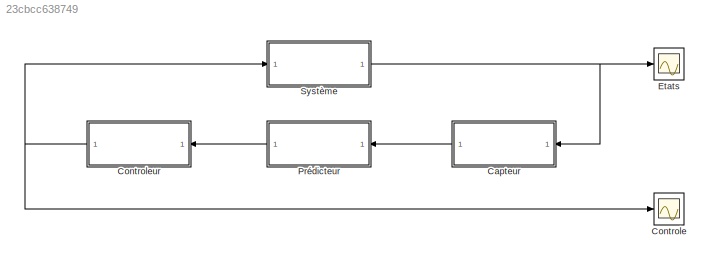
MODEL slx_23cbcc638749
KIND model
CONFIG AbsTol = auto
CONFIG EnableMultiTasking = off
CONFIG FixedStep = auto
CONFIG MaxStep = auto
CONFIG MinStep = auto
CONFIG RelTol = 1e-3
CONFIG SampleTimeConstraint = Unconstrained
CONFIG SolverName = ode45
CONFIG StartTime = 0.0
CONFIG StopTime = 10.0
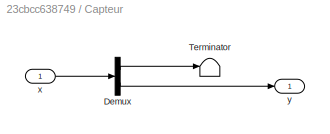
BLOCK [SubSystem] Capteur
BLOCK [Demux] Capteur/Demux
  Outputs = 2
BLOCK [Terminator] Capteur/Terminator
BLOCK [Inport] Capteur/x
BLOCK [Outport] Capteur/y
BLOCK [Scope] Controle
  Floating = off
  NumInputPorts = 1
  ScopeSpecificationString = Simulink.scopes.TimeScopeBlockCfg('CurrentConfiguration', extmgr.ConfigurationSet(extmgr.Configuration('Core','General UI',true),extmgr.Configuration('Core','Source UI',true),extmgr.Configuration('Sources','WiredSimulink',true),extmgr.Configuration('Visuals','Time Domain',true,'SerializedDisplays',{struct('MinYLimReal','-3.38168','MaxYLimReal','5.61173','YLabelReal','','MinYLimMag','0.00000','MaxY...<+1355ch>
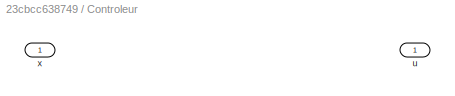
BLOCK [SubSystem] Controleur
BLOCK [Outport] Controleur/u
BLOCK [Inport] Controleur/x
BLOCK [Scope] Etats
  Floating = off
  NumInputPorts = 1
  ScopeSpecificationString = Simulink.scopes.TimeScopeBlockCfg('CurrentConfiguration', extmgr.ConfigurationSet(extmgr.Configuration('Core','General UI',true),extmgr.Configuration('Core','Source UI',true),extmgr.Configuration('Sources','WiredSimulink',true,'DataLoggingVariableName','ScopeData1'),extmgr.Configuration('Visuals','Time Domain',true,'SerializedDisplays',{struct('MinYLimReal','-1.00000','MaxYLimReal','1.00000','YLab...<+1531ch>
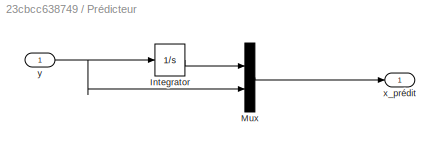
BLOCK [SubSystem] Prédicteur
BLOCK [Integrator] Prédicteur/Integrator
  InitialCondition = x0(1)
BLOCK [Mux] Prédicteur/Mux
  DisplayOption = bar
  Inputs = 2
BLOCK [Outport] Prédicteur/x_prédit
BLOCK [Inport] Prédicteur/y
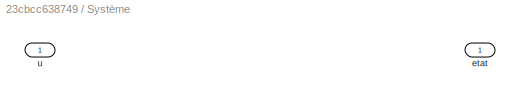
BLOCK [SubSystem] Système
BLOCK [Outport] Système/etat
BLOCK [Inport] Système/u
LINE Capteur/Demux:1 -> Capteur/Terminator:1
LINE Capteur/Demux:2 -> Capteur/y:1
LINE Capteur/x:1 -> Capteur/Demux:1
LINE Capteur:1 -> Prédicteur:1
NET Controleur:1 -> Controle:1, Système:1
LINE Prédicteur/Integrator:1 -> Prédicteur/Mux:1
LINE Prédicteur/Mux:1 -> Prédicteur/x_prédit:1
NET Prédicteur/y:1 -> Prédicteur/Integrator:1, Prédicteur/Mux:2
LINE Prédicteur:1 -> Controleur:1
NET Système:1 -> Capteur:1, Etats:1
note: NET lines group one-source signal fan-out (src -> all destinations, sorted); 1:1 wires keep LINE
